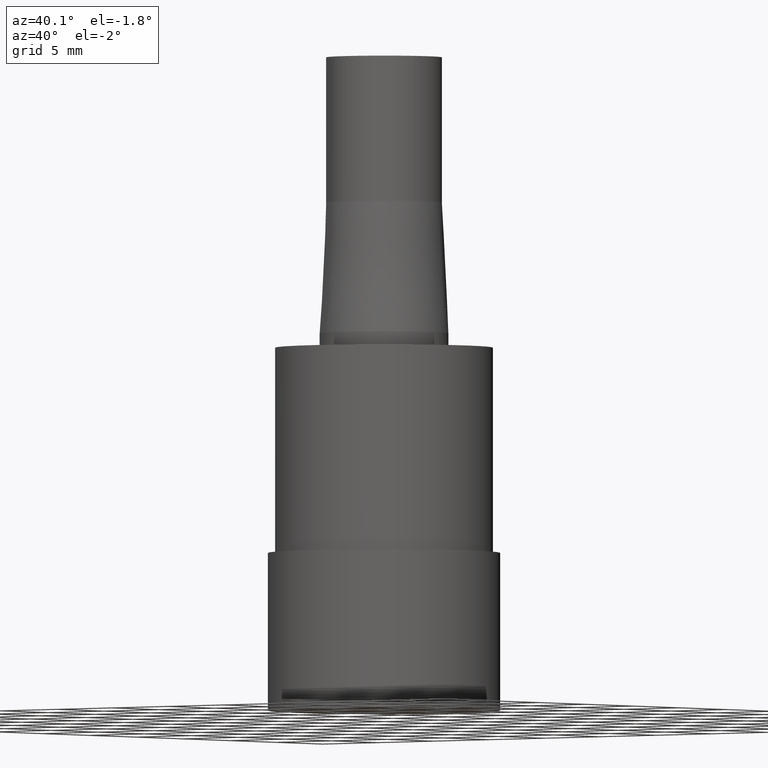
[diagram: clean part render]
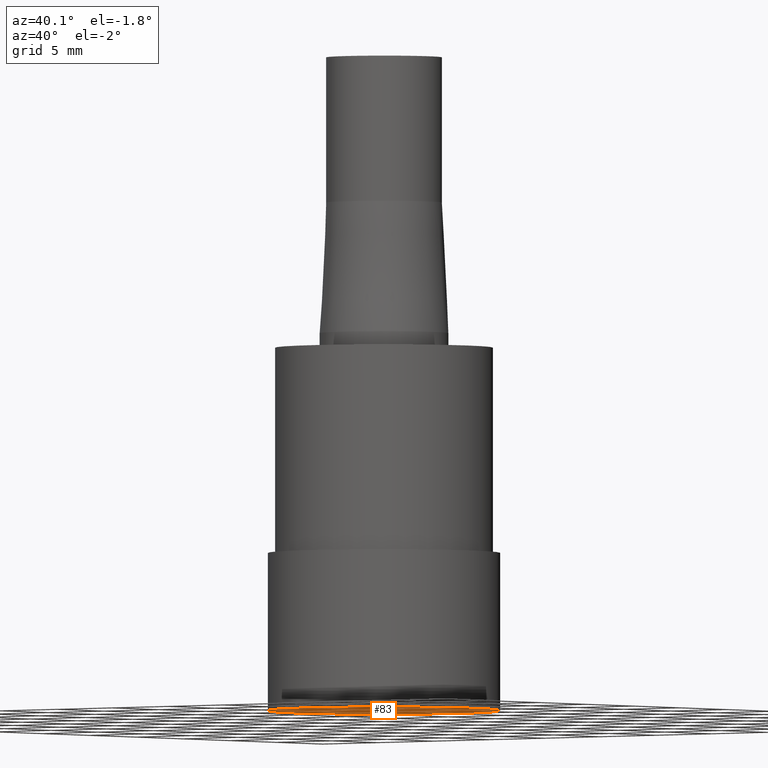
[diagram: same view with one face highlighted and labeled with its STEP entity id]
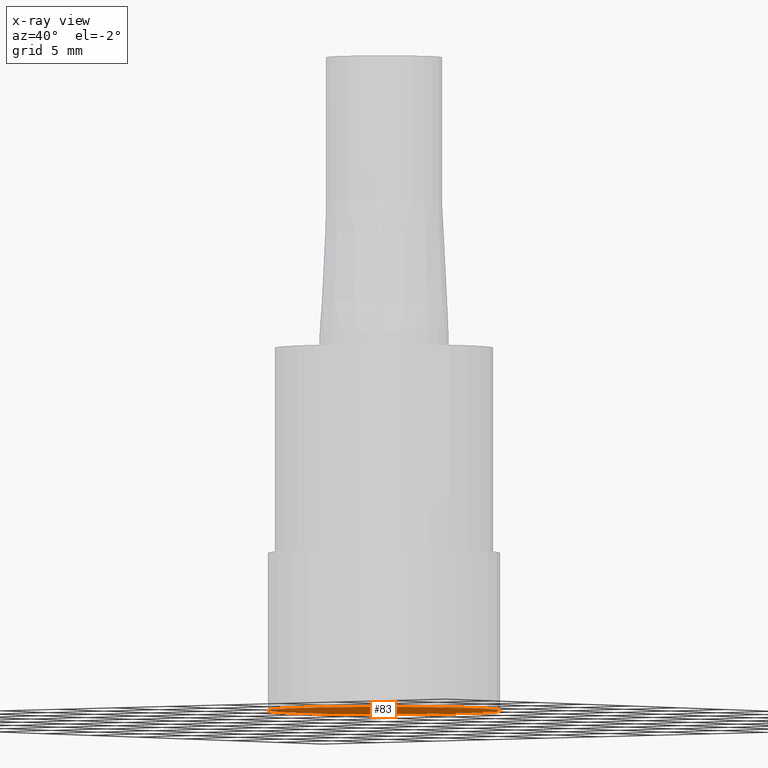
[diagram: x-ray of the same camera — body ghosted, the highlighted face saturated]
A machine part, auxiliary view. The second image highlights one B-rep face of the part: STEP entity #83.
The next image is the same camera in x-ray: the body ghosted, the highlighted face saturated — about 0% of this face is hidden behind the body in this view.
In plain terms, the highlighted planar face has unit normal (0, -0, -1).
Its self-contained STEP definition (entity closure, byte-faithful):
#83=ADVANCED_FACE('',(#108),#109,.T.);
#108=FACE_OUTER_BOUND('',#133,.T.);
#109=PLANE('',#134);
#133=EDGE_LOOP('',(#174));
#134=AXIS2_PLACEMENT_3D('',#175,#176,#177);
#174=ORIENTED_EDGE('',*,*,#185,.T.);
#175=CARTESIAN_POINT('',(-3.94430452610506E-030,4.0,6.3948846218409E-014));
#176=DIRECTION('',(6.12323399573677E-017,-1.58647468746875E-014,-1.0));
#177=DIRECTION('',(9.66608421237683E-031,1.0,-1.58647468746875E-014));
#185=EDGE_CURVE('',#200,#200,#201,.T.);
#200=VERTEX_POINT('',#216);
#201=CIRCLE('',#217,8.0);
#216=CARTESIAN_POINT('',(0.0,8.0,0.0));
#217=AXIS2_PLACEMENT_3D('',#239,#240,#241);
#239=CARTESIAN_POINT('',(0.0,0.0,0.0));
#240=DIRECTION('',(6.12323399573677E-017,1.22464679914735E-016,-1.0));
#241=DIRECTION('',(-1.23259516440783E-032,1.0,1.22464679914735E-016));